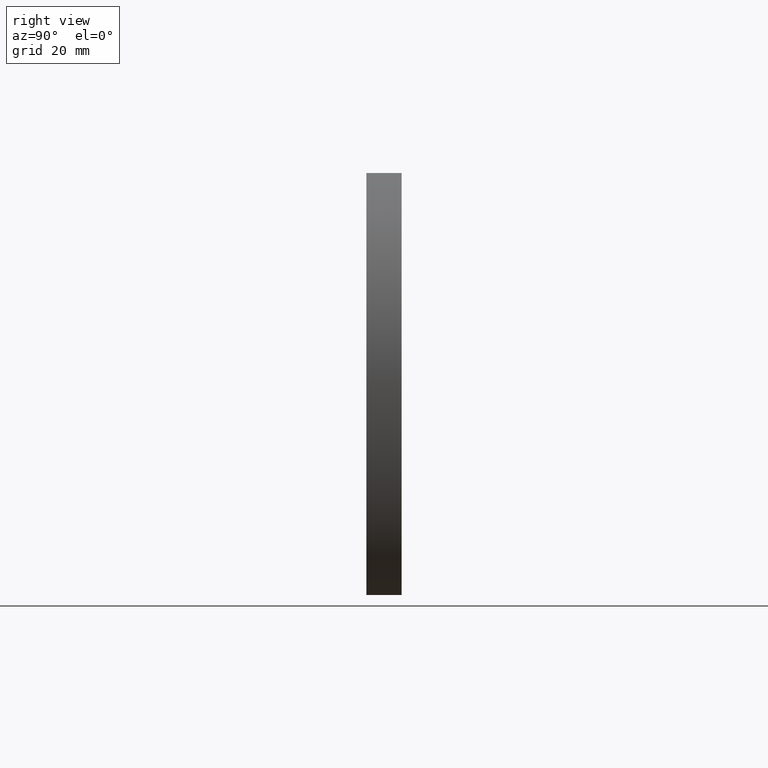
[diagram: clean part render]
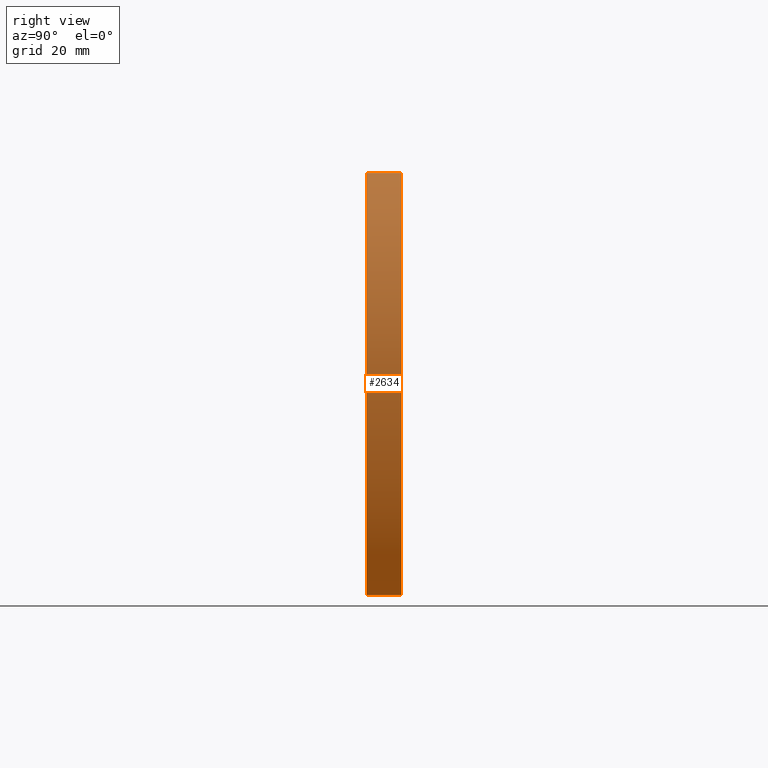
[diagram: same view with one face highlighted and labeled with its STEP entity id]
A machine part, right view. The second image highlights one B-rep face of the part: STEP entity #2634.
In plain terms, the highlighted cylindrical surface (partial cylindrical patch) has radius 94.4709 mm, axis along (-0, -1, -0).
Its self-contained STEP definition (entity closure, byte-faithful):
#183 = AXIS2_PLACEMENT_3D ( 'NONE', #2688, #4390, #10165 ) ;
#362 = CARTESIAN_POINT ( 'NONE',  ( -9.470930232558071500, 0.0000000000000000000, 0.0000000000000000000 ) ) ;
#443 = AXIS2_PLACEMENT_3D ( 'NONE', #10272, #9493, #6099 ) ;
#646 = LINE ( 'NONE', #6124, #2070 ) ;
#1293 = EDGE_CURVE ( 'NONE', #2362, #3189, #6759, .T. ) ;
#1355 = CARTESIAN_POINT ( 'NONE',  ( 63.50000000000001400, 0.0000000000000000000, -59.99999999999997200 ) ) ;
#1566 = ORIENTED_EDGE ( 'NONE', *, *, #9882, .F. ) ;
#1619 = EDGE_CURVE ( 'NONE', #2362, #9214, #4570, .T. ) ;
#1828 = EDGE_LOOP ( 'NONE', ( #8877, #1566, #10197, #4056 ) ) ;
#1887 = DIRECTION ( 'NONE',  ( 0.0000000000000000000, 0.0000000000000000000, -1.000000000000000000 ) ) ;
#2070 = VECTOR ( 'NONE', #8528, 1000.000000000000000 ) ;
#2072 = FACE_OUTER_BOUND ( 'NONE', #1828, .T. ) ;
#2362 = VERTEX_POINT ( 'NONE', #8503 ) ;
#2634 = ADVANCED_FACE ( 'NONE', ( #2072 ), #4686, .T. ) ;
#2688 = CARTESIAN_POINT ( 'NONE',  ( -9.470930232558071500, 10.00000000000000000, 0.0000000000000000000 ) ) ;
#2798 = CARTESIAN_POINT ( 'NONE',  ( 63.49999999999998600, 10.00000000000000000, 60.00000000000002800 ) ) ;
#3189 = VERTEX_POINT ( 'NONE', #7870 ) ;
#4056 = ORIENTED_EDGE ( 'NONE', *, *, #1293, .T. ) ;
#4192 = CIRCLE ( 'NONE', #5687, 94.47093023255808900 ) ;
#4390 = DIRECTION ( 'NONE',  ( -0.0000000000000000000, -1.000000000000000000, -0.0000000000000000000 ) ) ;
#4570 = CIRCLE ( 'NONE', #443, 94.47093023255808900 ) ;
#4606 = VERTEX_POINT ( 'NONE', #1355 ) ;
#4686 = CYLINDRICAL_SURFACE ( 'NONE', #183, 94.47093023255808900 ) ;
#5687 = AXIS2_PLACEMENT_3D ( 'NONE', #362, #6958, #1887 ) ;
#6099 = DIRECTION ( 'NONE',  ( 0.0000000000000000000, 0.0000000000000000000, -1.000000000000000000 ) ) ;
#6124 = CARTESIAN_POINT ( 'NONE',  ( 63.50000000000001400, 10.00000000000000000, -59.99999999999997200 ) ) ;
#6388 = VECTOR ( 'NONE', #8580, 1000.000000000000000 ) ;
#6759 = LINE ( 'NONE', #2798, #6388 ) ;
#6958 = DIRECTION ( 'NONE',  ( 0.0000000000000000000, 1.000000000000000000, -0.0000000000000000000 ) ) ;
#7870 = CARTESIAN_POINT ( 'NONE',  ( 63.49999999999998600, 0.0000000000000000000, 60.00000000000002800 ) ) ;
#8158 = EDGE_CURVE ( 'NONE', #3189, #4606, #4192, .T. ) ;
#8503 = CARTESIAN_POINT ( 'NONE',  ( 63.49999999999998600, 10.00000000000000000, 60.00000000000002800 ) ) ;
#8528 = DIRECTION ( 'NONE',  ( -0.0000000000000000000, -1.000000000000000000, -0.0000000000000000000 ) ) ;
#8580 = DIRECTION ( 'NONE',  ( -0.0000000000000000000, -1.000000000000000000, -0.0000000000000000000 ) ) ;
#8877 = ORIENTED_EDGE ( 'NONE', *, *, #8158, .T. ) ;
#8993 = CARTESIAN_POINT ( 'NONE',  ( 63.50000000000001400, 10.00000000000000000, -59.99999999999997200 ) ) ;
#9214 = VERTEX_POINT ( 'NONE', #8993 ) ;
#9493 = DIRECTION ( 'NONE',  ( 0.0000000000000000000, 1.000000000000000000, -0.0000000000000000000 ) ) ;
#9882 = EDGE_CURVE ( 'NONE', #9214, #4606, #646, .T. ) ;
#10165 = DIRECTION ( 'NONE',  ( 0.0000000000000000000, 0.0000000000000000000, -1.000000000000000000 ) ) ;
#10197 = ORIENTED_EDGE ( 'NONE', *, *, #1619, .F. ) ;
#10272 = CARTESIAN_POINT ( 'NONE',  ( -9.470930232558071500, 10.00000000000000000, 0.0000000000000000000 ) ) ;